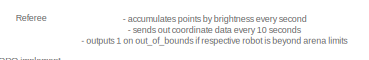
[diagram: root canvas - part 1/3, top left region]
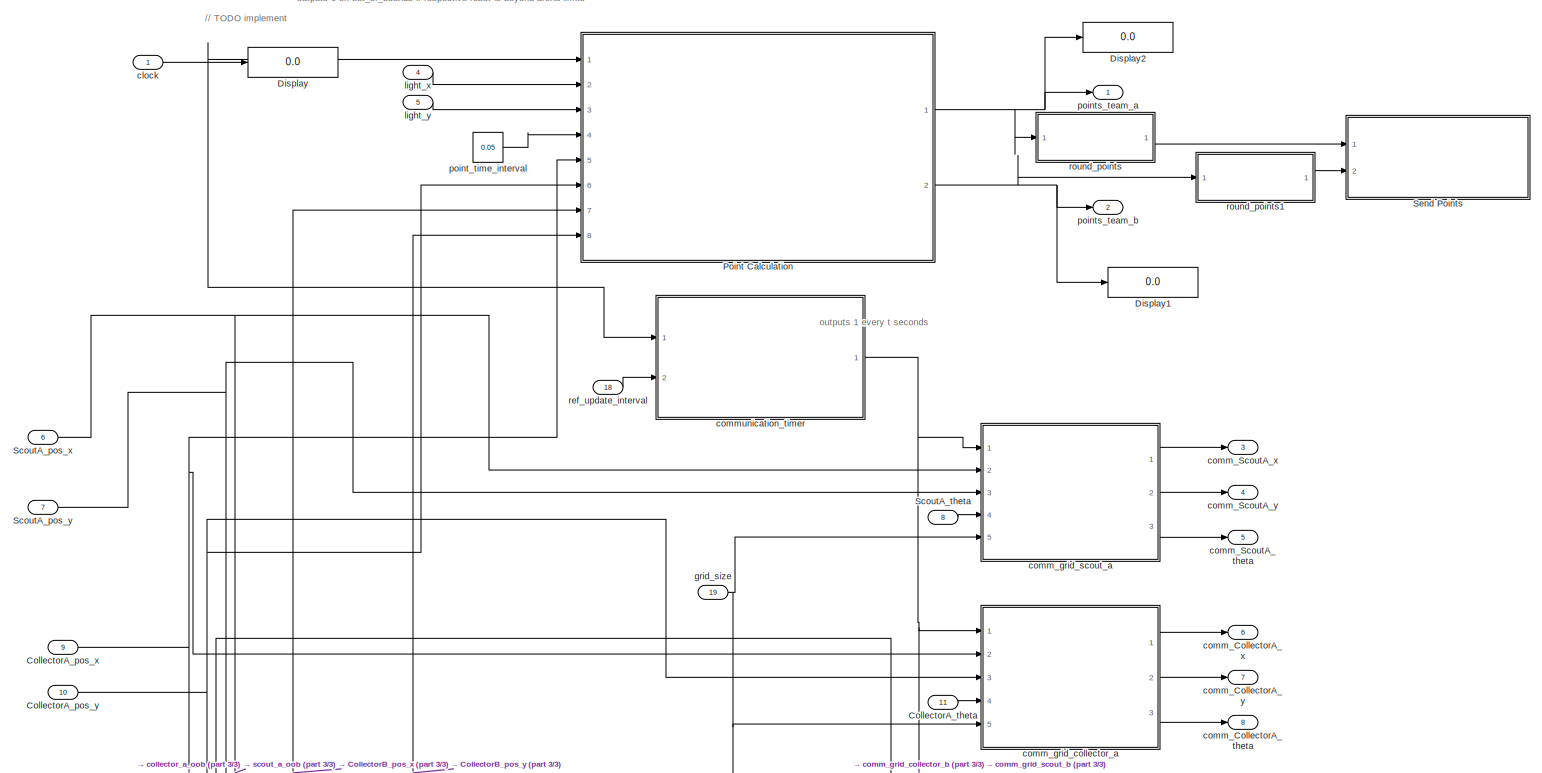
[diagram: root canvas - part 2/3, full width, top band]
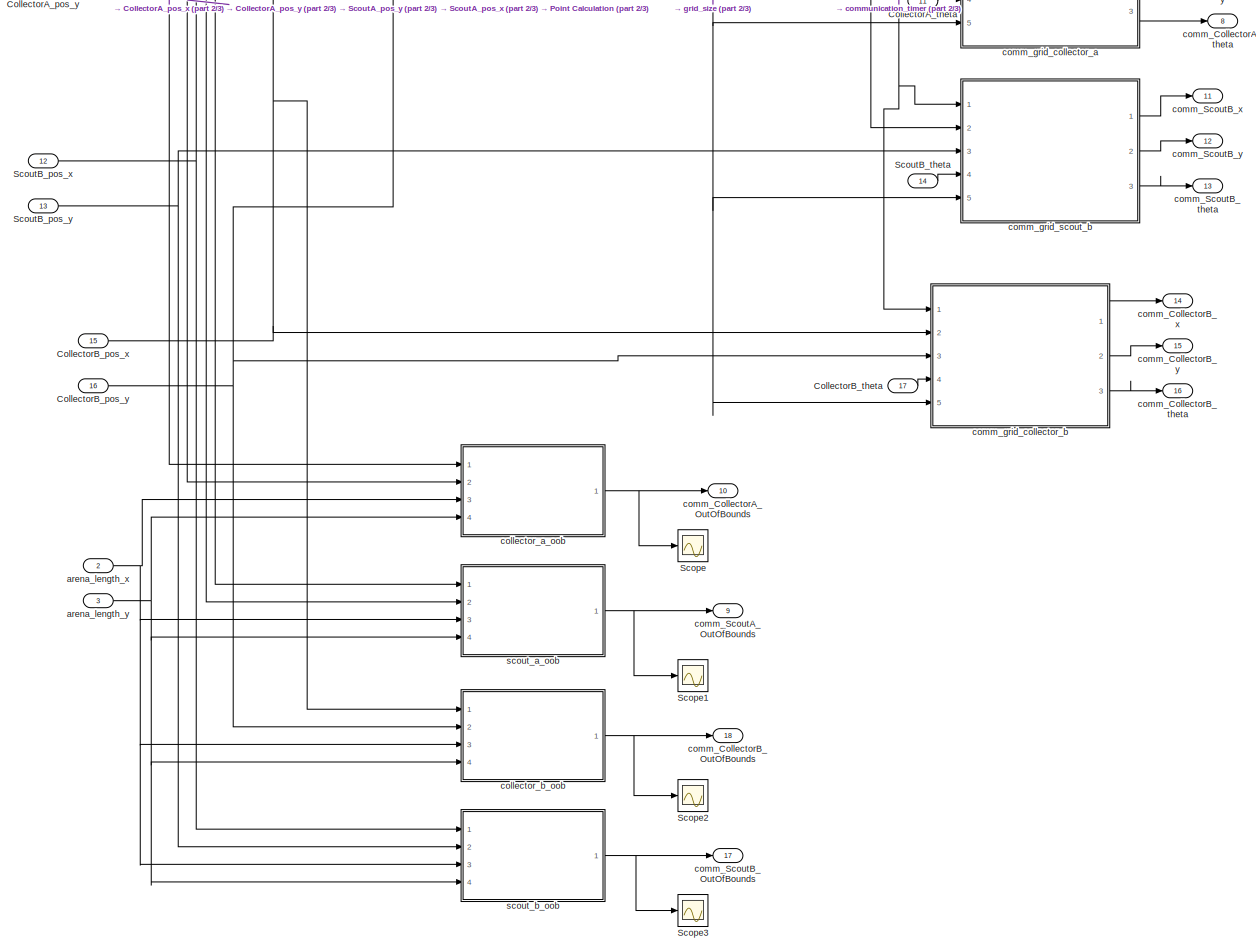
[diagram: root canvas - part 3/3, full width, bottom band]
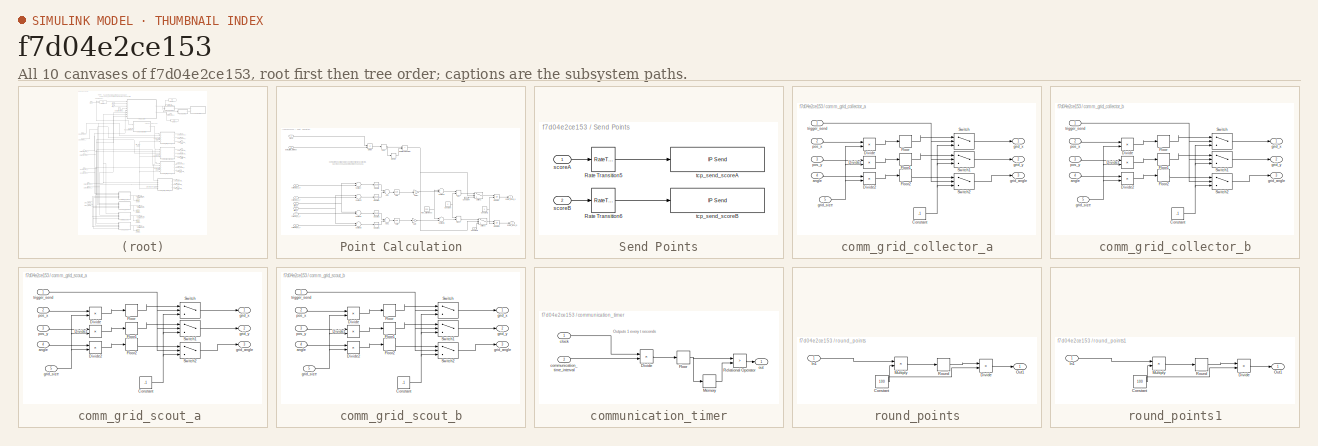
[diagram: thumbnail index - all 10 canvases of the model, root first then tree order]
MODEL slx_f7d04e2ce153
KIND model
CONFIG AbsTol = auto
CONFIG EnableMultiTasking = off
CONFIG FixedStep = 0.01
CONFIG MaxStep = auto
CONFIG MinStep = auto
CONFIG RelTol = 1e-3
CONFIG SampleTimeConstraint = Unconstrained
CONFIG Solver = VariableStepAuto
CONFIG SolverName = VariableStepAuto
CONFIG StartTime = 0.0
CONFIG StopTime = 20
BLOCK [Inport] CollectorA_pos_x
  IconDisplay = Port number
  Port = 9
BLOCK [Inport] CollectorA_pos_y
  IconDisplay = Port number
  Port = 10
BLOCK [Inport] CollectorA_theta
  IconDisplay = Port number
  Port = 11
BLOCK [Inport] CollectorB_pos_x
  IconDisplay = Port number
  Port = 15
BLOCK [Inport] CollectorB_pos_y
  IconDisplay = Port number
  Port = 16
BLOCK [Inport] CollectorB_theta
  IconDisplay = Port number
  Port = 17
BLOCK [Display] Display
  Decimation = 1
  Ports = [1]
BLOCK [Display] Display1
  Decimation = 1
  Ports = [1]
BLOCK [Display] Display2
  Decimation = 1
  Ports = [1]
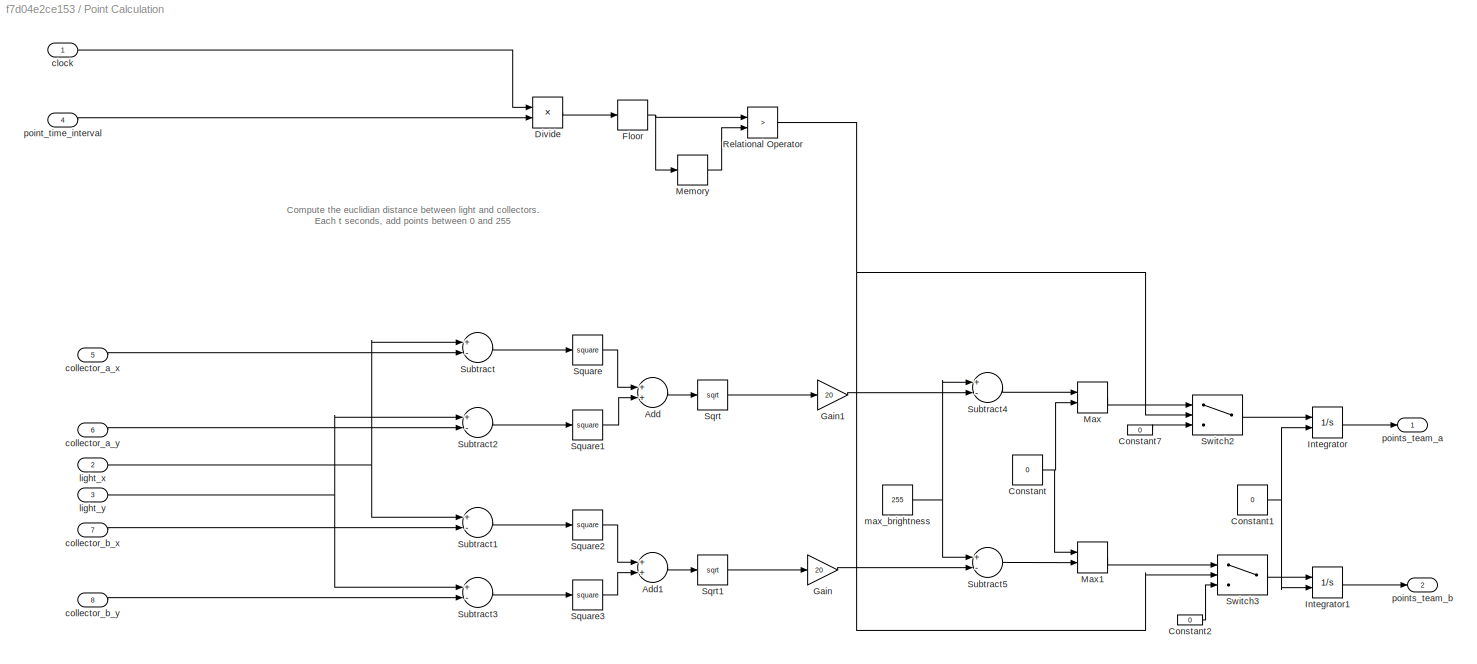
BLOCK [SubSystem] Point Calculation
  Ports = [8, 2]
  RequestExecContextInheritance = off
BLOCK [Sum] Point Calculation/Add
  InputSameDT = off
  OutDataTypeStr = Inherit: Inherit via internal rule
  Ports = [2, 1]
  SaturateOnIntegerOverflow = off
BLOCK [Sum] Point Calculation/Add1
  InputSameDT = off
  OutDataTypeStr = Inherit: Inherit via internal rule
  Ports = [2, 1]
  SaturateOnIntegerOverflow = off
BLOCK [Constant] Point Calculation/Constant
  Value = 0
BLOCK [Constant] Point Calculation/Constant1
  Value = 0
BLOCK [Constant] Point Calculation/Constant2
  Value = 0
BLOCK [Constant] Point Calculation/Constant7
  Value = 0
BLOCK [Product] Point Calculation/Divide
  InputSameDT = off
  Inputs = */
  OutDataTypeStr = Inherit: Inherit via internal rule
  Ports = [2, 1]
  RndMeth = Floor
  SaturateOnIntegerOverflow = off
BLOCK [Rounding] Point Calculation/Floor
BLOCK [Gain] Point Calculation/Gain
  Gain = 20
  OutDataTypeStr = Inherit: Inherit via internal rule
  ParamDataTypeStr = Inherit: Inherit via internal rule
  SaturateOnIntegerOverflow = off
BLOCK [Gain] Point Calculation/Gain1
  Gain = 20
  OutDataTypeStr = Inherit: Inherit via internal rule
  ParamDataTypeStr = Inherit: Inherit via internal rule
  SaturateOnIntegerOverflow = off
BLOCK [Integrator] Point Calculation/Integrator
  InitialConditionSource = external
  Ports = [2, 1]
BLOCK [Integrator] Point Calculation/Integrator1
  InitialConditionSource = external
  Ports = [2, 1]
BLOCK [MinMax] Point Calculation/Max
  Function = max
  InputSameDT = off
  Inputs = 2
  Ports = [2, 1]
  SaturateOnIntegerOverflow = off
BLOCK [MinMax] Point Calculation/Max1
  Function = max
  InputSameDT = off
  Inputs = 2
  Ports = [2, 1]
  SaturateOnIntegerOverflow = off
BLOCK [Memory] Point Calculation/Memory
BLOCK [RelationalOperator] Point Calculation/Relational Operator
  InputSameDT = off
  Operator = >
  OutDataTypeStr = boolean
  Ports = [2, 1]
  RndMeth = Simplest
BLOCK [Sqrt] Point Calculation/Sqrt
BLOCK [Sqrt] Point Calculation/Sqrt1
BLOCK [Math] Point Calculation/Square
  Operator = square
  Ports = [1, 1]
BLOCK [Math] Point Calculation/Square1
  Operator = square
  Ports = [1, 1]
BLOCK [Math] Point Calculation/Square2
  Operator = square
  Ports = [1, 1]
BLOCK [Math] Point Calculation/Square3
  Operator = square
  Ports = [1, 1]
BLOCK [Sum] Point Calculation/Subtract
  InputSameDT = off
  Inputs = +-
  OutDataTypeStr = Inherit: Inherit via internal rule
  Ports = [2, 1]
  SaturateOnIntegerOverflow = off
BLOCK [Sum] Point Calculation/Subtract1
  InputSameDT = off
  Inputs = +-
  OutDataTypeStr = Inherit: Inherit via internal rule
  Ports = [2, 1]
  SaturateOnIntegerOverflow = off
BLOCK [Sum] Point Calculation/Subtract2
  InputSameDT = off
  Inputs = +-
  OutDataTypeStr = Inherit: Inherit via internal rule
  Ports = [2, 1]
  SaturateOnIntegerOverflow = off
BLOCK [Sum] Point Calculation/Subtract3
  InputSameDT = off
  Inputs = +-
  OutDataTypeStr = Inherit: Inherit via internal rule
  Ports = [2, 1]
  SaturateOnIntegerOverflow = off
BLOCK [Sum] Point Calculation/Subtract4
  InputSameDT = off
  Inputs = +-
  OutDataTypeStr = Inherit: Inherit via internal rule
  Ports = [2, 1]
  SaturateOnIntegerOverflow = off
BLOCK [Sum] Point Calculation/Subtract5
  InputSameDT = off
  Inputs = +-
  OutDataTypeStr = Inherit: Inherit via internal rule
  Ports = [2, 1]
  SaturateOnIntegerOverflow = off
BLOCK [Switch] Point Calculation/Switch2
  Criteria = u2 > Threshold
  InputSameDT = off
  SaturateOnIntegerOverflow = off
BLOCK [Switch] Point Calculation/Switch3
  Criteria = u2 > Threshold
  InputSameDT = off
  SaturateOnIntegerOverflow = off
BLOCK [Inport] Point Calculation/clock 
  IconDisplay = Port number
BLOCK [Inport] Point Calculation/collector_a_x
  IconDisplay = Port number
  Port = 5
BLOCK [Inport] Point Calculation/collector_a_y
  IconDisplay = Port number
  Port = 6
BLOCK [Inport] Point Calculation/collector_b_x
  IconDisplay = Port number
  Port = 7
BLOCK [Inport] Point Calculation/collector_b_y
  IconDisplay = Port number
  Port = 8
BLOCK [Inport] Point Calculation/light_x
  IconDisplay = Port number
  Port = 2
BLOCK [Inport] Point Calculation/light_y
  IconDisplay = Port number
  Port = 3
BLOCK [Constant] Point Calculation/max_brightness
  Value = 255
BLOCK [Inport] Point Calculation/point_time_interval
  IconDisplay = Port number
  Port = 4
BLOCK [Outport] Point Calculation/points_team_a
  IconDisplay = Port number
BLOCK [Outport] Point Calculation/points_team_b
  IconDisplay = Port number
  Port = 2
BLOCK [Scope] Scope
  Floating = off
  NumInputPorts = 1
  Ports = [1]
  ScopeSpecificationString = Simulink.scopes.TimeScopeBlockCfg('CurrentConfiguration', extmgr.ConfigurationSet(extmgr.Configuration('Core','General UI',true),extmgr.Configuration('Core','Source UI',true),extmgr.Configuration('Sources','WiredSimulink',true),extmgr.Configuration('Visuals','Time Domain',true),extmgr.Configuration('Tools','Plot Navigation',true),extmgr.Configuration('Tools','Measurements',true)),'Version','2018a'...<+1ch>
BLOCK [Scope] Scope1
  Floating = off
  NumInputPorts = 1
  Ports = [1]
  ScopeSpecificationString = Simulink.scopes.TimeScopeBlockCfg('CurrentConfiguration', extmgr.ConfigurationSet(extmgr.Configuration('Core','General UI',true),extmgr.Configuration('Core','Source UI',true),extmgr.Configuration('Sources','WiredSimulink',true,'DataLoggingVariableName','ScopeData1'),extmgr.Configuration('Visuals','Time Domain',true,'SerializedDisplays',{struct('MinYLimReal','-0.125','MaxYLimReal','1.125','YLabelRe...<+1436ch>
BLOCK [Scope] Scope2
  Floating = off
  NumInputPorts = 1
  Ports = [1]
  ScopeSpecificationString = Simulink.scopes.TimeScopeBlockCfg('CurrentConfiguration', extmgr.ConfigurationSet(extmgr.Configuration('Core','General UI',true),extmgr.Configuration('Core','Source UI',true),extmgr.Configuration('Sources','WiredSimulink',true,'DataLoggingVariableName','ScopeData2'),extmgr.Configuration('Visuals','Time Domain',true),extmgr.Configuration('Tools','Plot Navigation',true),extmgr.Configuration('Tools',...<+40ch>
BLOCK [Scope] Scope3
  Floating = off
  NumInputPorts = 1
  Ports = [1]
  ScopeSpecificationString = Simulink.scopes.TimeScopeBlockCfg('CurrentConfiguration', extmgr.ConfigurationSet(extmgr.Configuration('Core','General UI',true),extmgr.Configuration('Core','Source UI',true),extmgr.Configuration('Sources','WiredSimulink',true,'DataLoggingVariableName','ScopeData3'),extmgr.Configuration('Visuals','Time Domain',true),extmgr.Configuration('Tools','Plot Navigation',true),extmgr.Configuration('Tools',...<+40ch>
BLOCK [Inport] ScoutA_pos_x
  IconDisplay = Port number
  Port = 6
BLOCK [Inport] ScoutA_pos_y
  IconDisplay = Port number
  Port = 7
BLOCK [Inport] ScoutA_theta
  IconDisplay = Port number
  Port = 8
BLOCK [Inport] ScoutB_pos_x
  IconDisplay = Port number
  Port = 12
BLOCK [Inport] ScoutB_pos_y
  IconDisplay = Port number
  Port = 13
BLOCK [Inport] ScoutB_theta
  IconDisplay = Port number
  Port = 14
BLOCK [SubSystem] Send Points
  Ports = [2]
  RequestExecContextInheritance = off
BLOCK [RateTransition] Send Points/Rate Transition5
  OutPortSampleTime = 0.1
BLOCK [RateTransition] Send Points/Rate Transition6
  OutPortSampleTime = 0.1
BLOCK [Inport] Send Points/scoreA
  IconDisplay = Port number
BLOCK [Inport] Send Points/scoreB
  IconDisplay = Port number
  Port = 2
BLOCK [Reference] Send Points/tcp_send_scoreA  REF=instrumentlib/TCP//IP Send
  Ports = [1]
  SourceBlock = instrumentlib/TCP//IP Send
  SourceProductBaseCode = IC
  SourceProductName = Instrument Control Toolbox
  SourceType = TCP/IP Send
BLOCK [Reference] Send Points/tcp_send_scoreB  REF=instrumentlib/TCP//IP Send
  Ports = [1]
  SourceBlock = instrumentlib/TCP//IP Send
  SourceProductBaseCode = IC
  SourceProductName = Instrument Control Toolbox
  SourceType = TCP/IP Send
BLOCK [Inport] arena_length_x
  IconDisplay = Port number
  Port = 2
BLOCK [Inport] arena_length_y
  IconDisplay = Port number
  Port = 3
BLOCK [Inport] clock
  IconDisplay = Port number
  OutDataTypeStr = double
  PortDimensions = 1
  SampleTime = 0
  SamplingMode = Sample based
  SignalType = real
BLOCK [ModelReference] collector_a_oob
  ModelNameDialog = oob_detector.slx
  ModelReferenceVersion = 1.52
  Ports = [4, 1]
BLOCK [ModelReference] collector_b_oob
  ModelNameDialog = oob_detector.slx
  ModelReferenceVersion = 1.52
  Ports = [4, 1]
BLOCK [Outport] comm_CollectorA_OutOfBounds
  IconDisplay = Port number
  Port = 10
BLOCK [Outport] comm_CollectorA_theta
  IconDisplay = Port number
  Port = 8
BLOCK [Outport] comm_CollectorA_x
  IconDisplay = Port number
  Port = 6
BLOCK [Outport] comm_CollectorA_y
  IconDisplay = Port number
  Port = 7
BLOCK [Outport] comm_CollectorB_OutOfBounds
  IconDisplay = Port number
  Port = 18
BLOCK [Outport] comm_CollectorB_theta
  IconDisplay = Port number
  Port = 16
BLOCK [Outport] comm_CollectorB_x
  IconDisplay = Port number
  Port = 14
BLOCK [Outport] comm_CollectorB_y
  IconDisplay = Port number
  Port = 15
BLOCK [Outport] comm_ScoutA_OutOfBounds
  IconDisplay = Port number
  Port = 9
BLOCK [Outport] comm_ScoutA_theta
  IconDisplay = Port number
  Port = 5
BLOCK [Outport] comm_ScoutA_x
  IconDisplay = Port number
  Port = 3
BLOCK [Outport] comm_ScoutA_y
  IconDisplay = Port number
  Port = 4
BLOCK [Outport] comm_ScoutB_OutOfBounds
  IconDisplay = Port number
  Port = 17
BLOCK [Outport] comm_ScoutB_theta
  IconDisplay = Port number
  Port = 13
BLOCK [Outport] comm_ScoutB_x
  IconDisplay = Port number
  Port = 11
BLOCK [Outport] comm_ScoutB_y
  IconDisplay = Port number
  Port = 12
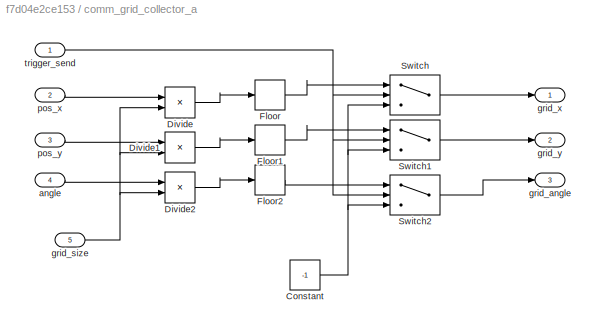
BLOCK [SubSystem] comm_grid_collector_a
  Ports = [5, 3]
  RequestExecContextInheritance = off
  TreatAsAtomicUnit = on
BLOCK [Constant] comm_grid_collector_a/Constant
  Value = -1
BLOCK [Product] comm_grid_collector_a/Divide
  InputSameDT = off
  Inputs = */
  OutDataTypeStr = Inherit: Inherit via internal rule
  Ports = [2, 1]
  RndMeth = Floor
  SaturateOnIntegerOverflow = off
BLOCK [Product] comm_grid_collector_a/Divide1
  InputSameDT = off
  Inputs = */
  OutDataTypeStr = Inherit: Inherit via internal rule
  Ports = [2, 1]
  RndMeth = Floor
  SaturateOnIntegerOverflow = off
BLOCK [Product] comm_grid_collector_a/Divide2
  InputSameDT = off
  Inputs = */
  OutDataTypeStr = Inherit: Inherit via internal rule
  Ports = [2, 1]
  RndMeth = Floor
  SaturateOnIntegerOverflow = off
BLOCK [Rounding] comm_grid_collector_a/Floor
BLOCK [Rounding] comm_grid_collector_a/Floor1
BLOCK [Rounding] comm_grid_collector_a/Floor2
BLOCK [Switch] comm_grid_collector_a/Switch
  Criteria = u2 > Threshold
  InputSameDT = off
  SaturateOnIntegerOverflow = off
BLOCK [Switch] comm_grid_collector_a/Switch1
  Criteria = u2 > Threshold
  InputSameDT = off
  SaturateOnIntegerOverflow = off
BLOCK [Switch] comm_grid_collector_a/Switch2
  Criteria = u2 > Threshold
  InputSameDT = off
  SaturateOnIntegerOverflow = off
BLOCK [Inport] comm_grid_collector_a/angle
  IconDisplay = Port number
  Port = 4
BLOCK [Outport] comm_grid_collector_a/grid_angle
  IconDisplay = Port number
  Port = 3
BLOCK [Inport] comm_grid_collector_a/grid_size 
  IconDisplay = Port number
  Port = 5
BLOCK [Outport] comm_grid_collector_a/grid_x
  IconDisplay = Port number
BLOCK [Outport] comm_grid_collector_a/grid_y
  IconDisplay = Port number
  Port = 2
BLOCK [Inport] comm_grid_collector_a/pos_x
  IconDisplay = Port number
  Port = 2
BLOCK [Inport] comm_grid_collector_a/pos_y
  IconDisplay = Port number
  Port = 3
BLOCK [Inport] comm_grid_collector_a/trigger_send
  IconDisplay = Port number
BLOCK [SubSystem] comm_grid_collector_b
  Ports = [5, 3]
  RequestExecContextInheritance = off
  TreatAsAtomicUnit = on
BLOCK [Constant] comm_grid_collector_b/Constant
  Value = -1
BLOCK [Product] comm_grid_collector_b/Divide
  InputSameDT = off
  Inputs = */
  OutDataTypeStr = Inherit: Inherit via internal rule
  Ports = [2, 1]
  RndMeth = Floor
  SaturateOnIntegerOverflow = off
BLOCK [Product] comm_grid_collector_b/Divide1
  InputSameDT = off
  Inputs = */
  OutDataTypeStr = Inherit: Inherit via internal rule
  Ports = [2, 1]
  RndMeth = Floor
  SaturateOnIntegerOverflow = off
BLOCK [Product] comm_grid_collector_b/Divide2
  InputSameDT = off
  Inputs = */
  OutDataTypeStr = Inherit: Inherit via internal rule
  Ports = [2, 1]
  RndMeth = Floor
  SaturateOnIntegerOverflow = off
BLOCK [Rounding] comm_grid_collector_b/Floor
BLOCK [Rounding] comm_grid_collector_b/Floor1
BLOCK [Rounding] comm_grid_collector_b/Floor2
BLOCK [Switch] comm_grid_collector_b/Switch
  Criteria = u2 > Threshold
  InputSameDT = off
  SaturateOnIntegerOverflow = off
BLOCK [Switch] comm_grid_collector_b/Switch1
  Criteria = u2 > Threshold
  InputSameDT = off
  SaturateOnIntegerOverflow = off
BLOCK [Switch] comm_grid_collector_b/Switch2
  Criteria = u2 > Threshold
  InputSameDT = off
  SaturateOnIntegerOverflow = off
BLOCK [Inport] comm_grid_collector_b/angle
  IconDisplay = Port number
  Port = 4
BLOCK [Outport] comm_grid_collector_b/grid_angle
  IconDisplay = Port number
  Port = 3
BLOCK [Inport] comm_grid_collector_b/grid_size 
  IconDisplay = Port number
  Port = 5
BLOCK [Outport] comm_grid_collector_b/grid_x
  IconDisplay = Port number
BLOCK [Outport] comm_grid_collector_b/grid_y
  IconDisplay = Port number
  Port = 2
BLOCK [Inport] comm_grid_collector_b/pos_x
  IconDisplay = Port number
  Port = 2
BLOCK [Inport] comm_grid_collector_b/pos_y
  IconDisplay = Port number
  Port = 3
BLOCK [Inport] comm_grid_collector_b/trigger_send
  IconDisplay = Port number
BLOCK [SubSystem] comm_grid_scout_a 
  Ports = [5, 3]
  RequestExecContextInheritance = off
  TreatAsAtomicUnit = on
BLOCK [Constant] comm_grid_scout_a /Constant
  Value = -1
BLOCK [Product] comm_grid_scout_a /Divide
  InputSameDT = off
  Inputs = */
  OutDataTypeStr = Inherit: Inherit via internal rule
  Ports = [2, 1]
  RndMeth = Floor
  SaturateOnIntegerOverflow = off
BLOCK [Product] comm_grid_scout_a /Divide1
  InputSameDT = off
  Inputs = */
  OutDataTypeStr = Inherit: Inherit via internal rule
  Ports = [2, 1]
  RndMeth = Floor
  SaturateOnIntegerOverflow = off
BLOCK [Product] comm_grid_scout_a /Divide2
  InputSameDT = off
  Inputs = */
  OutDataTypeStr = Inherit: Inherit via internal rule
  Ports = [2, 1]
  RndMeth = Floor
  SaturateOnIntegerOverflow = off
BLOCK [Rounding] comm_grid_scout_a /Floor
BLOCK [Rounding] comm_grid_scout_a /Floor1
BLOCK [Rounding] comm_grid_scout_a /Floor2
BLOCK [Switch] comm_grid_scout_a /Switch
  Criteria = u2 > Threshold
  InputSameDT = off
  SaturateOnIntegerOverflow = off
BLOCK [Switch] comm_grid_scout_a /Switch1
  Criteria = u2 > Threshold
  InputSameDT = off
  SaturateOnIntegerOverflow = off
BLOCK [Switch] comm_grid_scout_a /Switch2
  Criteria = u2 > Threshold
  InputSameDT = off
  SaturateOnIntegerOverflow = off
BLOCK [Inport] comm_grid_scout_a /angle
  IconDisplay = Port number
  Port = 4
BLOCK [Outport] comm_grid_scout_a /grid_angle
  IconDisplay = Port number
  Port = 3
BLOCK [Inport] comm_grid_scout_a /grid_size 
  IconDisplay = Port number
  Port = 5
BLOCK [Outport] comm_grid_scout_a /grid_x
  IconDisplay = Port number
BLOCK [Outport] comm_grid_scout_a /grid_y
  IconDisplay = Port number
  Port = 2
BLOCK [Inport] comm_grid_scout_a /pos_x
  IconDisplay = Port number
  Port = 2
BLOCK [Inport] comm_grid_scout_a /pos_y
  IconDisplay = Port number
  Port = 3
BLOCK [Inport] comm_grid_scout_a /trigger_send
  IconDisplay = Port number
BLOCK [SubSystem] comm_grid_scout_b
  Ports = [5, 3]
  RequestExecContextInheritance = off
  TreatAsAtomicUnit = on
BLOCK [Constant] comm_grid_scout_b/Constant
  Value = -1
BLOCK [Product] comm_grid_scout_b/Divide
  InputSameDT = off
  Inputs = */
  OutDataTypeStr = Inherit: Inherit via internal rule
  Ports = [2, 1]
  RndMeth = Floor
  SaturateOnIntegerOverflow = off
BLOCK [Product] comm_grid_scout_b/Divide1
  InputSameDT = off
  Inputs = */
  OutDataTypeStr = Inherit: Inherit via internal rule
  Ports = [2, 1]
  RndMeth = Floor
  SaturateOnIntegerOverflow = off
BLOCK [Product] comm_grid_scout_b/Divide2
  InputSameDT = off
  Inputs = */
  OutDataTypeStr = Inherit: Inherit via internal rule
  Ports = [2, 1]
  RndMeth = Floor
  SaturateOnIntegerOverflow = off
BLOCK [Rounding] comm_grid_scout_b/Floor
BLOCK [Rounding] comm_grid_scout_b/Floor1
BLOCK [Rounding] comm_grid_scout_b/Floor2
BLOCK [Switch] comm_grid_scout_b/Switch
  Criteria = u2 > Threshold
  InputSameDT = off
  SaturateOnIntegerOverflow = off
BLOCK [Switch] comm_grid_scout_b/Switch1
  Criteria = u2 > Threshold
  InputSameDT = off
  SaturateOnIntegerOverflow = off
BLOCK [Switch] comm_grid_scout_b/Switch2
  Criteria = u2 > Threshold
  InputSameDT = off
  SaturateOnIntegerOverflow = off
BLOCK [Inport] comm_grid_scout_b/angle
  IconDisplay = Port number
  Port = 4
BLOCK [Outport] comm_grid_scout_b/grid_angle
  IconDisplay = Port number
  Port = 3
BLOCK [Inport] comm_grid_scout_b/grid_size 
  IconDisplay = Port number
  Port = 5
BLOCK [Outport] comm_grid_scout_b/grid_x
  IconDisplay = Port number
BLOCK [Outport] comm_grid_scout_b/grid_y
  IconDisplay = Port number
  Port = 2
BLOCK [Inport] comm_grid_scout_b/pos_x
  IconDisplay = Port number
  Port = 2
BLOCK [Inport] comm_grid_scout_b/pos_y
  IconDisplay = Port number
  Port = 3
BLOCK [Inport] comm_grid_scout_b/trigger_send
  IconDisplay = Port number
BLOCK [SubSystem] communication_timer
  Ports = [2, 1]
  RequestExecContextInheritance = off
BLOCK [Product] communication_timer/Divide
  InputSameDT = off
  Inputs = */
  OutDataTypeStr = Inherit: Inherit via internal rule
  Ports = [2, 1]
  RndMeth = Floor
  SaturateOnIntegerOverflow = off
BLOCK [Rounding] communication_timer/Floor
BLOCK [Memory] communication_timer/Memory
BLOCK [RelationalOperator] communication_timer/Relational Operator
  InputSameDT = off
  Operator = >
  OutDataTypeStr = boolean
  Ports = [2, 1]
  RndMeth = Simplest
BLOCK [Inport] communication_timer/clock
  IconDisplay = Port number
BLOCK [Inport] communication_timer/communication_time_interval
  IconDisplay = Port number
  Port = 2
BLOCK [Outport] communication_timer/out
  IconDisplay = Port number
BLOCK [Inport] grid_size 
  IconDisplay = Port number
  Port = 19
BLOCK [Inport] light_x
  IconDisplay = Port number
  Port = 4
BLOCK [Inport] light_y
  IconDisplay = Port number
  Port = 5
BLOCK [Constant] point_time_interval
  Value = 0.05
BLOCK [Outport] points_team_a
  IconDisplay = Port number
BLOCK [Outport] points_team_b
  IconDisplay = Port number
  Port = 2
BLOCK [Inport] ref_update_interval
  IconDisplay = Port number
  Port = 18
BLOCK [SubSystem] round_points
  Ports = [1, 1]
  RequestExecContextInheritance = off
BLOCK [Constant] round_points/Constant
  Value = 100
BLOCK [Product] round_points/Divide
  InputSameDT = off
  Inputs = */
  OutDataTypeStr = Inherit: Inherit via internal rule
  Ports = [2, 1]
  RndMeth = Floor
  SaturateOnIntegerOverflow = off
BLOCK [Inport] round_points/In1
  IconDisplay = Port number
BLOCK [Product] round_points/Multiply
  InputSameDT = off
  OutDataTypeStr = Inherit: Inherit via internal rule
  Ports = [2, 1]
  RndMeth = Floor
  SaturateOnIntegerOverflow = off
BLOCK [Outport] round_points/Out1
  IconDisplay = Port number
BLOCK [Rounding] round_points/Round
  Operator = round
BLOCK [SubSystem] round_points1
  Ports = [1, 1]
  RequestExecContextInheritance = off
BLOCK [Constant] round_points1/Constant
  Value = 100
BLOCK [Product] round_points1/Divide
  InputSameDT = off
  Inputs = */
  OutDataTypeStr = Inherit: Inherit via internal rule
  Ports = [2, 1]
  RndMeth = Floor
  SaturateOnIntegerOverflow = off
BLOCK [Inport] round_points1/In1
  IconDisplay = Port number
BLOCK [Product] round_points1/Multiply
  InputSameDT = off
  OutDataTypeStr = Inherit: Inherit via internal rule
  Ports = [2, 1]
  RndMeth = Floor
  SaturateOnIntegerOverflow = off
BLOCK [Outport] round_points1/Out1
  IconDisplay = Port number
BLOCK [Rounding] round_points1/Round
  Operator = round
BLOCK [ModelReference] scout_a_oob
  ModelNameDialog = oob_detector.slx
  ModelReferenceVersion = 1.52
  Ports = [4, 1]
BLOCK [ModelReference] scout_b_oob
  ModelNameDialog = oob_detector.slx
  ModelReferenceVersion = 1.52
  Ports = [4, 1]
ANNOTATION (root): - accumulates points by brightness every second - sends out coordinate data every 10 seconds - outputs 1 on out_of_bounds if respective robot is beyond arena limits
ANNOTATION (root): // TODO implement
ANNOTATION (root): Referee
ANNOTATION (root): outputs 1 every t seconds
ANNOTATION Point Calculation: Compute the euclidian distance between light and collectors. Each t seconds, add points between 0 and 255
ANNOTATION communication_timer: Outputs 1 every t seconds
NET CollectorA_pos_x:1 -> Point Calculation:5, collector_a_oob:1, comm_grid_collector_a:2
NET CollectorA_pos_y:1 -> Point Calculation:6, collector_a_oob:2, comm_grid_collector_a:3
LINE CollectorA_theta:1 -> comm_grid_collector_a:4
NET CollectorB_pos_x:1 -> Point Calculation:7, collector_b_oob:1, comm_grid_collector_b:2
NET CollectorB_pos_y:1 -> Point Calculation:8, collector_b_oob:2, comm_grid_collector_b:3
LINE CollectorB_theta:1 -> comm_grid_collector_b:4
LINE Point Calculation/Add1:1 -> Point Calculation/Sqrt1:1
LINE Point Calculation/Add:1 -> Point Calculation/Sqrt:1
NET Point Calculation/Constant1:1 -> Point Calculation/Integrator1:2, Point Calculation/Integrator:2
LINE Point Calculation/Constant2:1 -> Point Calculation/Switch3:3
LINE Point Calculation/Constant7:1 -> Point Calculation/Switch2:3
NET Point Calculation/Constant:1 -> Point Calculation/Max1:1, Point Calculation/Max:2
LINE Point Calculation/Divide:1 -> Point Calculation/Floor:1
NET Point Calculation/Floor:1 -> Point Calculation/Memory:1, Point Calculation/Relational Operator:1
LINE Point Calculation/Gain1:1 -> Point Calculation/Subtract4:2
LINE Point Calculation/Gain:1 -> Point Calculation/Subtract5:2
LINE Point Calculation/Integrator1:1 -> Point Calculation/points_team_b:1
LINE Point Calculation/Integrator:1 -> Point Calculation/points_team_a:1
LINE Point Calculation/Max1:1 -> Point Calculation/Switch3:1
LINE Point Calculation/Max:1 -> Point Calculation/Switch2:1
LINE Point Calculation/Memory:1 -> Point Calculation/Relational Operator:2
NET Point Calculation/Relational Operator:1 -> Point Calculation/Switch2:2, Point Calculation/Switch3:2
LINE Point Calculation/Sqrt1:1 -> Point Calculation/Gain:1
LINE Point Calculation/Sqrt:1 -> Point Calculation/Gain1:1
LINE Point Calculation/Square1:1 -> Point Calculation/Add:2
LINE Point Calculation/Square2:1 -> Point Calculation/Add1:1
LINE Point Calculation/Square3:1 -> Point Calculation/Add1:2
LINE Point Calculation/Square:1 -> Point Calculation/Add:1
LINE Point Calculation/Subtract1:1 -> Point Calculation/Square2:1
LINE Point Calculation/Subtract2:1 -> Point Calculation/Square1:1
LINE Point Calculation/Subtract3:1 -> Point Calculation/Square3:1
LINE Point Calculation/Subtract4:1 -> Point Calculation/Max:1
LINE Point Calculation/Subtract5:1 -> Point Calculation/Max1:2
LINE Point Calculation/Subtract:1 -> Point Calculation/Square:1
LINE Point Calculation/Switch2:1 -> Point Calculation/Integrator:1
LINE Point Calculation/Switch3:1 -> Point Calculation/Integrator1:1
LINE Point Calculation/clock :1 -> Point Calculation/Divide:1
LINE Point Calculation/collector_a_x:1 -> Point Calculation/Subtract:2
LINE Point Calculation/collector_a_y:1 -> Point Calculation/Subtract2:2
LINE Point Calculation/collector_b_x:1 -> Point Calculation/Subtract1:2
LINE Point Calculation/collector_b_y:1 -> Point Calculation/Subtract3:2
NET Point Calculation/light_x:1 -> Point Calculation/Subtract1:1, Point Calculation/Subtract:1
NET Point Calculation/light_y:1 -> Point Calculation/Subtract2:1, Point Calculation/Subtract3:1
NET Point Calculation/max_brightness:1 -> Point Calculation/Subtract4:1, Point Calculation/Subtract5:1
LINE Point Calculation/point_time_interval:1 -> Point Calculation/Divide:2
NET Point Calculation:1 -> Display2:1, points_team_a:1, round_points:1
NET Point Calculation:2 -> Display1:1, points_team_b:1, round_points1:1
NET ScoutA_pos_x:1 -> comm_grid_scout_a :2, scout_a_oob:1
NET ScoutA_pos_y:1 -> comm_grid_scout_a :3, scout_a_oob:2
LINE ScoutA_theta:1 -> comm_grid_scout_a :4
NET ScoutB_pos_x:1 -> comm_grid_scout_b:2, scout_b_oob:1
NET ScoutB_pos_y:1 -> comm_grid_scout_b:3, scout_b_oob:2
LINE ScoutB_theta:1 -> comm_grid_scout_b:4
LINE Send Points/Rate Transition5:1 -> Send Points/tcp_send_scoreA:1
LINE Send Points/Rate Transition6:1 -> Send Points/tcp_send_scoreB:1
LINE Send Points/scoreA:1 -> Send Points/Rate Transition5:1
LINE Send Points/scoreB:1 -> Send Points/Rate Transition6:1
NET arena_length_x:1 -> collector_a_oob:3, collector_b_oob:3, scout_a_oob:3, scout_b_oob:3
NET arena_length_y:1 -> collector_a_oob:4, collector_b_oob:4, scout_a_oob:4, scout_b_oob:4
NET clock:1 -> Display:1, Point Calculation:1, communication_timer:1
NET collector_a_oob:1 -> Scope:1, comm_CollectorA_OutOfBounds:1
NET collector_b_oob:1 -> Scope2:1, comm_CollectorB_OutOfBounds:1
NET comm_grid_collector_a/Constant:1 -> comm_grid_collector_a/Switch1:3, comm_grid_collector_a/Switch2:3, comm_grid_collector_a/Switch:3
LINE comm_grid_collector_a/Divide1:1 -> comm_grid_collector_a/Floor1:1
LINE comm_grid_collector_a/Divide2:1 -> comm_grid_collector_a/Floor2:1
LINE comm_grid_collector_a/Divide:1 -> comm_grid_collector_a/Floor:1
LINE comm_grid_collector_a/Floor1:1 -> comm_grid_collector_a/Switch1:1
LINE comm_grid_collector_a/Floor2:1 -> comm_grid_collector_a/Switch2:1
LINE comm_grid_collector_a/Floor:1 -> comm_grid_collector_a/Switch:1
LINE comm_grid_collector_a/Switch1:1 -> comm_grid_collector_a/grid_y:1
LINE comm_grid_collector_a/Switch2:1 -> comm_grid_collector_a/grid_angle:1
LINE comm_grid_collector_a/Switch:1 -> comm_grid_collector_a/grid_x:1
LINE comm_grid_collector_a/angle:1 -> comm_grid_collector_a/Divide2:1
NET comm_grid_collector_a/grid_size :1 -> comm_grid_collector_a/Divide1:2, comm_grid_collector_a/Divide2:2, comm_grid_collector_a/Divide:2
LINE comm_grid_collector_a/pos_x:1 -> comm_grid_collector_a/Divide:1
LINE comm_grid_collector_a/pos_y:1 -> comm_grid_collector_a/Divide1:1
NET comm_grid_collector_a/trigger_send:1 -> comm_grid_collector_a/Switch1:2, comm_grid_collector_a/Switch2:2, comm_grid_collector_a/Switch:2
LINE comm_grid_collector_a:1 -> comm_CollectorA_x:1
LINE comm_grid_collector_a:2 -> comm_CollectorA_y:1
LINE comm_grid_collector_a:3 -> comm_CollectorA_theta:1
NET comm_grid_collector_b/Constant:1 -> comm_grid_collector_b/Switch1:3, comm_grid_collector_b/Switch2:3, comm_grid_collector_b/Switch:3
LINE comm_grid_collector_b/Divide1:1 -> comm_grid_collector_b/Floor1:1
LINE comm_grid_collector_b/Divide2:1 -> comm_grid_collector_b/Floor2:1
LINE comm_grid_collector_b/Divide:1 -> comm_grid_collector_b/Floor:1
LINE comm_grid_collector_b/Floor1:1 -> comm_grid_collector_b/Switch1:1
LINE comm_grid_collector_b/Floor2:1 -> comm_grid_collector_b/Switch2:1
LINE comm_grid_collector_b/Floor:1 -> comm_grid_collector_b/Switch:1
LINE comm_grid_collector_b/Switch1:1 -> comm_grid_collector_b/grid_y:1
LINE comm_grid_collector_b/Switch2:1 -> comm_grid_collector_b/grid_angle:1
LINE comm_grid_collector_b/Switch:1 -> comm_grid_collector_b/grid_x:1
LINE comm_grid_collector_b/angle:1 -> comm_grid_collector_b/Divide2:1
NET comm_grid_collector_b/grid_size :1 -> comm_grid_collector_b/Divide1:2, comm_grid_collector_b/Divide2:2, comm_grid_collector_b/Divide:2
LINE comm_grid_collector_b/pos_x:1 -> comm_grid_collector_b/Divide:1
LINE comm_grid_collector_b/pos_y:1 -> comm_grid_collector_b/Divide1:1
NET comm_grid_collector_b/trigger_send:1 -> comm_grid_collector_b/Switch1:2, comm_grid_collector_b/Switch2:2, comm_grid_collector_b/Switch:2
LINE comm_grid_collector_b:1 -> comm_CollectorB_x:1
LINE comm_grid_collector_b:2 -> comm_CollectorB_y:1
LINE comm_grid_collector_b:3 -> comm_CollectorB_theta:1
NET comm_grid_scout_a /Constant:1 -> comm_grid_scout_a /Switch1:3, comm_grid_scout_a /Switch2:3, comm_grid_scout_a /Switch:3
LINE comm_grid_scout_a /Divide1:1 -> comm_grid_scout_a /Floor1:1
LINE comm_grid_scout_a /Divide2:1 -> comm_grid_scout_a /Floor2:1
LINE comm_grid_scout_a /Divide:1 -> comm_grid_scout_a /Floor:1
LINE comm_grid_scout_a /Floor1:1 -> comm_grid_scout_a /Switch1:1
LINE comm_grid_scout_a /Floor2:1 -> comm_grid_scout_a /Switch2:1
LINE comm_grid_scout_a /Floor:1 -> comm_grid_scout_a /Switch:1
LINE comm_grid_scout_a /Switch1:1 -> comm_grid_scout_a /grid_y:1
LINE comm_grid_scout_a /Switch2:1 -> comm_grid_scout_a /grid_angle:1
LINE comm_grid_scout_a /Switch:1 -> comm_grid_scout_a /grid_x:1
LINE comm_grid_scout_a /angle:1 -> comm_grid_scout_a /Divide2:1
NET comm_grid_scout_a /grid_size :1 -> comm_grid_scout_a /Divide1:2, comm_grid_scout_a /Divide2:2, comm_grid_scout_a /Divide:2
LINE comm_grid_scout_a /pos_x:1 -> comm_grid_scout_a /Divide:1
LINE comm_grid_scout_a /pos_y:1 -> comm_grid_scout_a /Divide1:1
NET comm_grid_scout_a /trigger_send:1 -> comm_grid_scout_a /Switch1:2, comm_grid_scout_a /Switch2:2, comm_grid_scout_a /Switch:2
LINE comm_grid_scout_a :1 -> comm_ScoutA_x:1
LINE comm_grid_scout_a :2 -> comm_ScoutA_y:1
LINE comm_grid_scout_a :3 -> comm_ScoutA_theta:1
NET comm_grid_scout_b/Constant:1 -> comm_grid_scout_b/Switch1:3, comm_grid_scout_b/Switch2:3, comm_grid_scout_b/Switch:3
LINE comm_grid_scout_b/Divide1:1 -> comm_grid_scout_b/Floor1:1
LINE comm_grid_scout_b/Divide2:1 -> comm_grid_scout_b/Floor2:1
LINE comm_grid_scout_b/Divide:1 -> comm_grid_scout_b/Floor:1
LINE comm_grid_scout_b/Floor1:1 -> comm_grid_scout_b/Switch1:1
LINE comm_grid_scout_b/Floor2:1 -> comm_grid_scout_b/Switch2:1
LINE comm_grid_scout_b/Floor:1 -> comm_grid_scout_b/Switch:1
LINE comm_grid_scout_b/Switch1:1 -> comm_grid_scout_b/grid_y:1
LINE comm_grid_scout_b/Switch2:1 -> comm_grid_scout_b/grid_angle:1
LINE comm_grid_scout_b/Switch:1 -> comm_grid_scout_b/grid_x:1
LINE comm_grid_scout_b/angle:1 -> comm_grid_scout_b/Divide2:1
NET comm_grid_scout_b/grid_size :1 -> comm_grid_scout_b/Divide1:2, comm_grid_scout_b/Divide2:2, comm_grid_scout_b/Divide:2
LINE comm_grid_scout_b/pos_x:1 -> comm_grid_scout_b/Divide:1
LINE comm_grid_scout_b/pos_y:1 -> comm_grid_scout_b/Divide1:1
NET comm_grid_scout_b/trigger_send:1 -> comm_grid_scout_b/Switch1:2, comm_grid_scout_b/Switch2:2, comm_grid_scout_b/Switch:2
LINE comm_grid_scout_b:1 -> comm_ScoutB_x:1
LINE comm_grid_scout_b:2 -> comm_ScoutB_y:1
LINE comm_grid_scout_b:3 -> comm_ScoutB_theta:1
LINE communication_timer/Divide:1 -> communication_timer/Floor:1
NET communication_timer/Floor:1 -> communication_timer/Memory:1, communication_timer/Relational Operator:1
LINE communication_timer/Memory:1 -> communication_timer/Relational Operator:2
LINE communication_timer/Relational Operator:1 -> communication_timer/out:1
LINE communication_timer/clock:1 -> communication_timer/Divide:1
LINE communication_timer/communication_time_interval:1 -> communication_timer/Divide:2
NET communication_timer:1 -> comm_grid_collector_a:1, comm_grid_collector_b:1, comm_grid_scout_a :1, comm_grid_scout_b:1
NET grid_size :1 -> comm_grid_collector_a:5, comm_grid_collector_b:5, comm_grid_scout_a :5, comm_grid_scout_b:5
LINE light_x:1 -> Point Calculation:2
LINE light_y:1 -> Point Calculation:3
LINE point_time_interval:1 -> Point Calculation:4
LINE ref_update_interval:1 -> communication_timer:2
NET round_points/Constant:1 -> round_points/Divide:2, round_points/Multiply:2
LINE round_points/Divide:1 -> round_points/Out1:1
LINE round_points/In1:1 -> round_points/Multiply:1
LINE round_points/Multiply:1 -> round_points/Round:1
LINE round_points/Round:1 -> round_points/Divide:1
NET round_points1/Constant:1 -> round_points1/Divide:2, round_points1/Multiply:2
LINE round_points1/Divide:1 -> round_points1/Out1:1
LINE round_points1/In1:1 -> round_points1/Multiply:1
LINE round_points1/Multiply:1 -> round_points1/Round:1
LINE round_points1/Round:1 -> round_points1/Divide:1
LINE round_points1:1 -> Send Points:2
LINE round_points:1 -> Send Points:1
NET scout_a_oob:1 -> Scope1:1, comm_ScoutA_OutOfBounds:1
NET scout_b_oob:1 -> Scope3:1, comm_ScoutB_OutOfBounds:1
note: NET lines group one-source signal fan-out (src -> all destinations, sorted); 1:1 wires keep LINE
